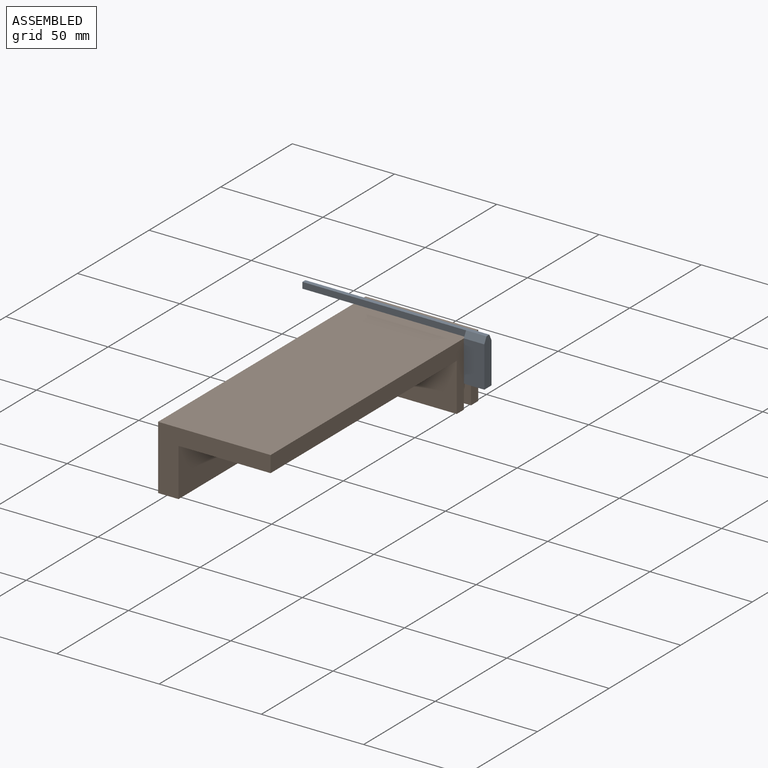
[diagram: assembled view]
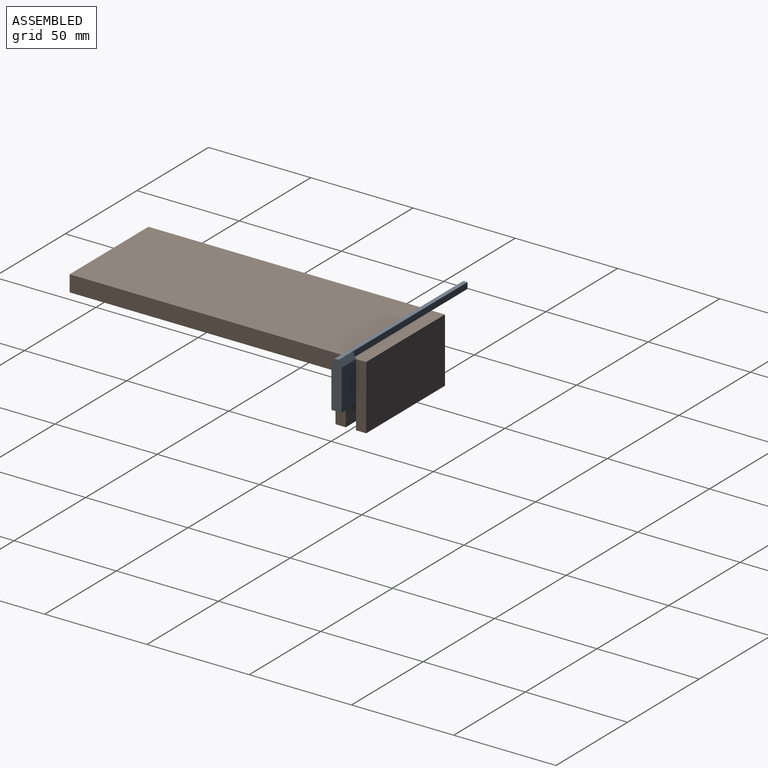
[diagram: assembled view, second angle]
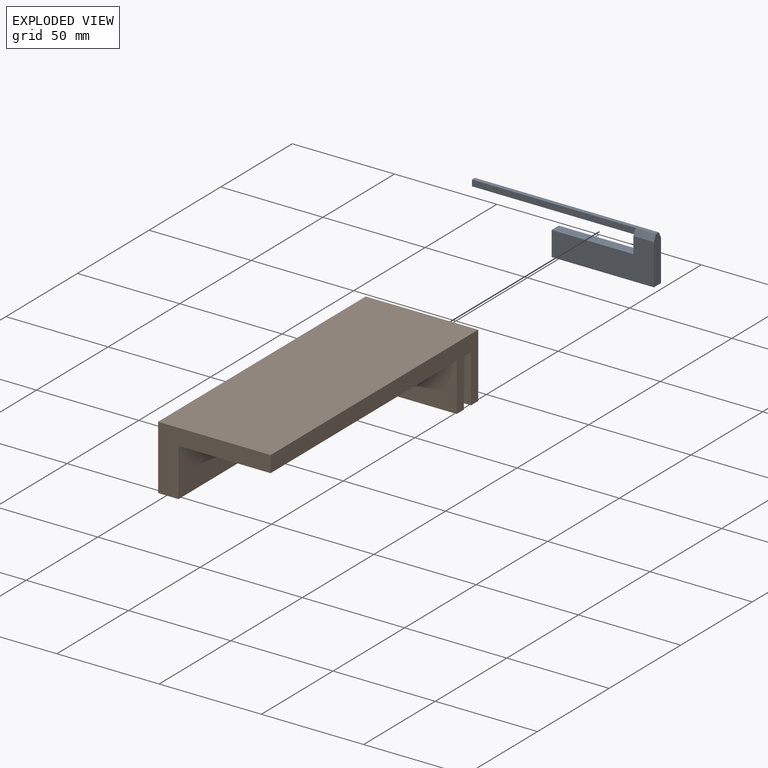
[diagram: exploded view]
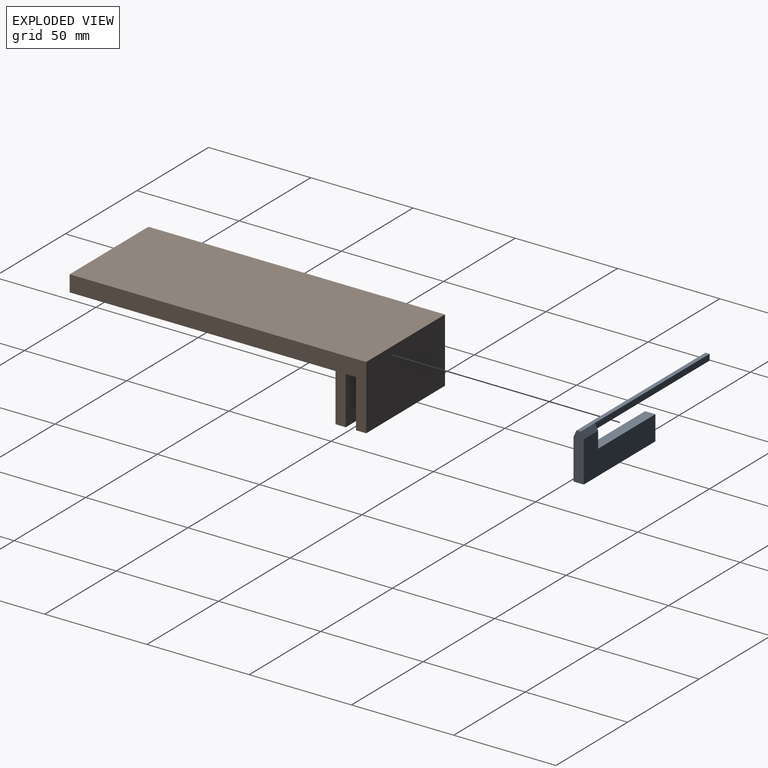
[diagram: exploded view, second angle]
ASSEMBLY  parts=2 mates=3
PART A: 14 faces, bbox 5x90x23 mm
  f0: plane 80x3mm, normal (-1,0,0), area 240mm2, adj f2,f3,f4,f7
  f1: plane 80x3mm, normal (1,0,0), area 240mm2, adj f2,f3,f4,f7
  f2: plane 90x2mm, normal (0,0,1), area 180mm2, adj f0,f1,f4,f5,f12,f13
  f3: plane 80x2mm, normal (0,0,-1), area 160mm2, adj f0,f1,f4,f7
  f4: plane 3x2mm, normal (0,1,0), area 6mm2, adj f0,f1,f2,f3
  f5: plane 23x5mm, normal (0,-1,0), area 110.5mm2, adj f2,f6,f8,f9,f12,f13
  f6: plane 50x20mm, normal (-1,0,0), area 680mm2, adj f5,f7,f9,f10,f11,f13
  f7: plane 11x5mm, normal (0,1,0), area 44.5mm2, adj f0,f1,f3,f6,f8,f10,f12,f13
  f8: plane 50x20mm, normal (1,0,0), area 680mm2, adj f5,f7,f9,f10,f11,f12
  f9: plane 50x5mm, normal (0,0,-1), area 250mm2, adj f5,f6,f8,f11
  f10: plane 40x5mm, normal (0,0,1), area 200mm2, adj f6,f7,f8,f11
  f11: plane 12x5mm, normal (0,1,0), area 60mm2, adj f6,f8,f9,f10
  f12: plane 10x3mm, normal (0.89,0,0.45), area 33.5mm2, adj f2,f5,f7,f8
  f13: plane 10x3mm, normal (-0.89,0,0.45), area 33.5mm2, adj f2,f5,f6,f7
PART B: 24 faces, bbox 55x145x31.5 mm
  f0: plane 23.5x5mm, normal (1,0,0), area 117.5mm2, adj f1,f9,f21,f23
  f1: plane 45x5mm, normal (0,0,-1), area 225mm2, adj f0,f11,f21,f23
  f2: cylinder r=4mm len=8mm, axis (1,0,0), area 100.5mm2, adj f6,f19
  f3: cylinder r=4mm len=8mm, axis (1,0,0), area 100.5mm2, adj f6,f16
  f4: plane 52.5x23.5mm, normal (1,0,0), area 1101mm2, adj f5,f9,f14,f17,f20
  f5: plane 52.5x45mm, normal (0,0,-1), area 2362.5mm2, adj f4,f11,f14,f20
  f6: plane 145x31.5mm, normal (-1,0,0), area 4467mm2, adj f2,f3,f8,f9,f12,f22
  f7: plane 62.5x23.5mm, normal (1,0,0), area 1336mm2, adj f9,f10,f12,f13,f18
  f8: plane 145x55mm, normal (0,0,1), area 7975mm2, adj f6,f11,f12,f22
  f9: plane 145x55mm, normal (0,0,-1), area 1900mm2, adj f0,f4,f6,f7,f11,f12,f15,f20
  f10: plane 62.5x45mm, normal (0,0,-1), area 2812.5mm2, adj f7,f11,f12,f13
  f11: plane 145x31.5mm, normal (1,0,0), area 1395mm2, adj f1,f5,f8,f9,f10,f12,f15,f20
  f12: plane 55x31.5mm, normal (0,-1,0), area 675mm2, adj f6,f7,f8,f9,f10,f11
  f13: plane 45x23.5mm, normal (0,-1,0), area 528.8mm2, adj f7,f10,f15
  f14: plane 45x23.5mm, normal (0,1,0), area 528.8mm2, adj f4,f5,f15
  f15: plane 45x23.5mm, normal (0.46,0,-0.89), area 761.5mm2, adj f9,f11,f13,f14
  f16: plane 13x13mm, normal (1,0,0), area 82.5mm2, adj f3,f17
  f17: cylinder r=6.5mm len=13mm, axis (1,0,0), area 245mm2, adj f4,f16
  f18: cylinder r=6.5mm len=13mm, axis (1,0,0), area 245mm2, adj f7,f19
  f19: plane 13x13mm, normal (1,0,0), area 82.5mm2, adj f2,f18
  f20: plane 45x23.5mm, normal (0,-1,0), area 1057.5mm2, adj f4,f5,f9,f11
  f21: plane 45x23.5mm, normal (0,1,0), area 1057.5mm2, adj f0,f1,f9,f11
  f22: plane 55x31.5mm, normal (0,1,0), area 1732.5mm2, adj f6,f8,f9,f11
  f23: plane 45x23.5mm, normal (0,-1,0), area 1057.5mm2, adj f0,f1,f9,f11
PLACE A rot(axis=(0,0,1),90deg) t=(36.21,-14.98,-17.94)mm
PLACE B rot(axis=(0.23,-0.2,-0.95),0deg) t=(-18.79,-82.48,-19.44)mm
MATE planar A.f10 <-> B.f1  axis (0,0,1) through (16.21,-14.98,-27.44)mm
MATE planar A.f7 <-> B.f11  axis (-1,0,0) through (36.21,-14.98,-22.93)mm
MATE planar A.f6 <-> B.f21  axis (0,-1,0) through (23.57,-17.48,-32.26)mm
